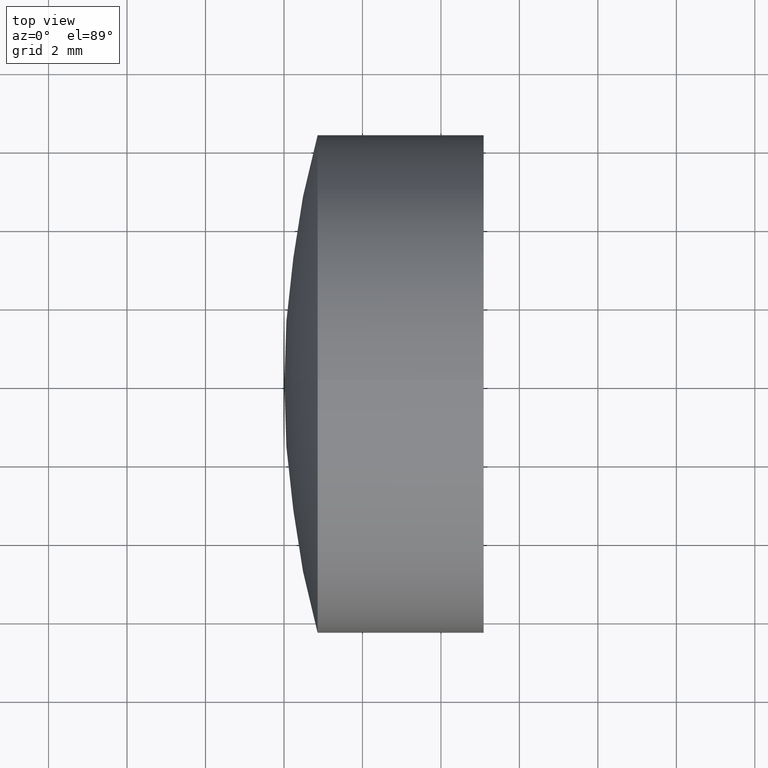
[diagram: clean part render]
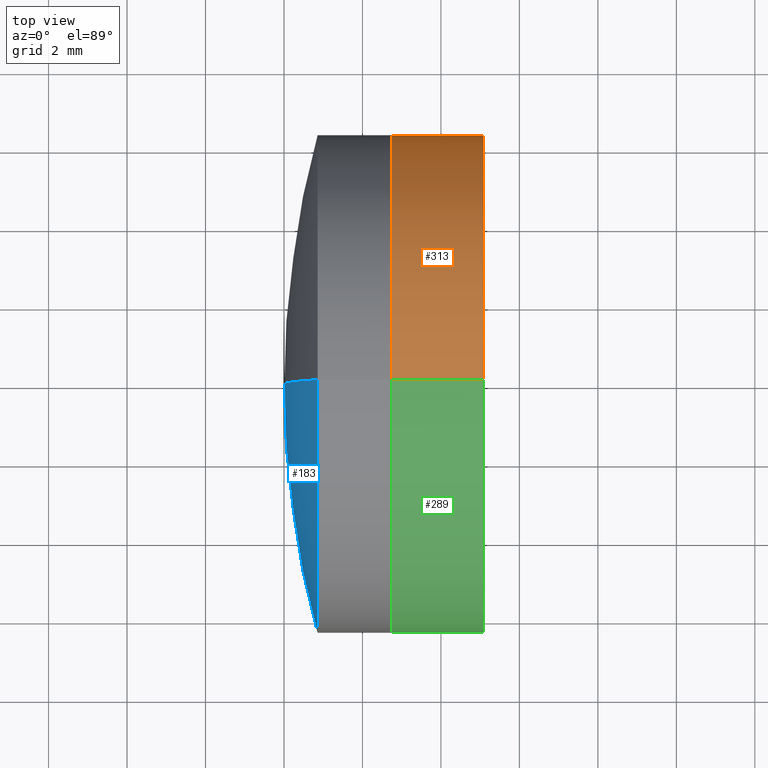
[diagram: same view with three faces highlighted in distinct colors, each labeled with its STEP entity id]
A machine part, top view with three faces highlighted in distinct colors.
Their STEP definitions:

[orange] entity #313 — the highlighted cylindrical surface (partial cylindrical patch) has radius 6.35 mm, axis along (-1, -0, -0).
#5 = VERTEX_POINT ( 'NONE', #310 ) ;
#23 = CARTESIAN_POINT ( 'NONE',  ( 286.7458055381524700, 0.0000000000000000000, 6.349999999999917900 ) ) ;
#32 = DIRECTION ( 'NONE',  ( 0.0000000000000000000, 0.0000000000000000000, 1.000000000000000000 ) ) ;
#39 = CARTESIAN_POINT ( 'NONE',  ( 286.7458055381524700, 0.0000000000000000000, 0.0000000000000000000 ) ) ;
#50 = LINE ( 'NONE', #222, #242 ) ;
#55 = LINE ( 'NONE', #298, #247 ) ;
#62 = CARTESIAN_POINT ( 'NONE',  ( -0.5519199926577972300, 0.0000000000000000000, 0.0000000000000000000 ) ) ;
#69 = VERTEX_POINT ( 'NONE', #23 ) ;
#82 = ORIENTED_EDGE ( 'NONE', *, *, #127, .T. ) ;
#83 = AXIS2_PLACEMENT_3D ( 'NONE', #189, #339, #165 ) ;
#93 = DIRECTION ( 'NONE',  ( -1.000000000000000000, -0.0000000000000000000, -0.0000000000000000000 ) ) ;
#112 = EDGE_CURVE ( 'NONE', #171, #69, #55, .T. ) ;
#119 = CARTESIAN_POINT ( 'NONE',  ( 289.0896146618997600, 0.0000000000000000000, 6.349999999999906400 ) ) ;
#120 = VERTEX_POINT ( 'NONE', #291 ) ;
#121 = DIRECTION ( 'NONE',  ( -1.000000000000000000, -0.0000000000000000000, -0.0000000000000000000 ) ) ;
#126 = ORIENTED_EDGE ( 'NONE', *, *, #112, .F. ) ;
#127 = EDGE_CURVE ( 'NONE', #5, #120, #50, .T. ) ;
#138 = ORIENTED_EDGE ( 'NONE', *, *, #306, .T. ) ;
#150 = DIRECTION ( 'NONE',  ( -1.000000000000000000, -0.0000000000000000000, -0.0000000000000000000 ) ) ;
#165 = DIRECTION ( 'NONE',  ( 0.0000000000000000000, 0.0000000000000000000, 1.000000000000000000 ) ) ;
#166 = FACE_OUTER_BOUND ( 'NONE', #217, .T. ) ;
#168 = AXIS2_PLACEMENT_3D ( 'NONE', #39, #93, #180 ) ;
#171 = VERTEX_POINT ( 'NONE', #119 ) ;
#177 = AXIS2_PLACEMENT_3D ( 'NONE', #62, #261, #32 ) ;
#180 = DIRECTION ( 'NONE',  ( 0.0000000000000000000, 0.0000000000000000000, 1.000000000000000000 ) ) ;
#189 = CARTESIAN_POINT ( 'NONE',  ( 289.0896146618997600, 0.0000000000000000000, 0.0000000000000000000 ) ) ;
#217 = EDGE_LOOP ( 'NONE', ( #138, #82, #224, #126 ) ) ;
#222 = CARTESIAN_POINT ( 'NONE',  ( -0.5519199926577972300, 7.776507174585593600E-016, -6.349999999999918800 ) ) ;
#223 = CIRCLE ( 'NONE', #83, 6.349999999999906400 ) ;
#224 = ORIENTED_EDGE ( 'NONE', *, *, #228, .F. ) ;
#226 = CIRCLE ( 'NONE', #168, 6.349999999999932100 ) ;
#228 = EDGE_CURVE ( 'NONE', #69, #120, #226, .T. ) ;
#242 = VECTOR ( 'NONE', #121, 1000.000000000000000 ) ;
#247 = VECTOR ( 'NONE', #150, 1000.000000000000000 ) ;
#261 = DIRECTION ( 'NONE',  ( -1.000000000000000000, -0.0000000000000000000, -0.0000000000000000000 ) ) ;
#275 = CYLINDRICAL_SURFACE ( 'NONE', #177, 6.349999999999918800 ) ;
#291 = CARTESIAN_POINT ( 'NONE',  ( 286.7458055381524700, 7.776507174585592600E-016, -6.349999999999921500 ) ) ;
#298 = CARTESIAN_POINT ( 'NONE',  ( -0.5519199926577972300, 0.0000000000000000000, 6.349999999999918800 ) ) ;
#306 = EDGE_CURVE ( 'NONE', #171, #5, #223, .T. ) ;
#310 = CARTESIAN_POINT ( 'NONE',  ( 289.0896146618997600, 7.776507174585584700E-016, -6.349999999999906400 ) ) ;
#313 = ADVANCED_FACE ( 'NONE', ( #166 ), #275, .T. ) ;
#339 = DIRECTION ( 'NONE',  ( -1.000000000000000000, -0.0000000000000000000, -0.0000000000000000000 ) ) ;

[blue] entity #183 — the highlighted spherical surface has radius 24.2 mm.
#6 = DIRECTION ( 'NONE',  ( 0.0000000000000000000, 1.000000000000000000, 0.0000000000000000000 ) ) ;
#11 = AXIS2_PLACEMENT_3D ( 'NONE', #208, #22, #184 ) ;
#22 = DIRECTION ( 'NONE',  ( -1.000000000000000000, -0.0000000000000000000, -0.0000000000000000000 ) ) ;
#44 = DIRECTION ( 'NONE',  ( 0.0000000000000000000, 0.0000000000000000000, -1.000000000000000000 ) ) ;
#68 = CARTESIAN_POINT ( 'NONE',  ( 308.2089566504702100, 0.0000000000000000000, -3.485532528785909500E-015 ) ) ;
#70 = CARTESIAN_POINT ( 'NONE',  ( 308.2089566504702100, 0.0000000000000000000, -3.485532528785909500E-015 ) ) ;
#72 = AXIS2_PLACEMENT_3D ( 'NONE', #91, #319, #174 ) ;
#73 = EDGE_CURVE ( 'NONE', #122, #99, #131, .T. ) ;
#91 = CARTESIAN_POINT ( 'NONE',  ( 308.2089566504702100, 0.0000000000000000000, -3.485532528785909500E-015 ) ) ;
#99 = VERTEX_POINT ( 'NONE', #105 ) ;
#105 = CARTESIAN_POINT ( 'NONE',  ( 284.8569224778333400, 0.0000000000000000000, 6.350000000000001400 ) ) ;
#122 = VERTEX_POINT ( 'NONE', #271 ) ;
#124 = EDGE_CURVE ( 'NONE', #99, #201, #305, .T. ) ;
#131 = CIRCLE ( 'NONE', #11, 6.349999999999996100 ) ;
#141 = EDGE_LOOP ( 'NONE', ( #198, #330, #284 ) ) ;
#152 = AXIS2_PLACEMENT_3D ( 'NONE', #68, #6, #195 ) ;
#174 = DIRECTION ( 'NONE',  ( 0.0000000000000000000, -1.224646799147353200E-016, 1.000000000000000000 ) ) ;
#183 = ADVANCED_FACE ( 'NONE', ( #301 ), #185, .T. ) ;
#184 = DIRECTION ( 'NONE',  ( 0.0000000000000000000, 0.0000000000000000000, 1.000000000000000000 ) ) ;
#185 = SPHERICAL_SURFACE ( 'NONE', #152, 24.20000000000000600 ) ;
#195 = DIRECTION ( 'NONE',  ( 0.0000000000000000000, 0.0000000000000000000, 1.000000000000000000 ) ) ;
#197 = DIRECTION ( 'NONE',  ( 0.0000000000000000000, -1.000000000000000000, 0.0000000000000000000 ) ) ;
#198 = ORIENTED_EDGE ( 'NONE', *, *, #200, .F. ) ;
#200 = EDGE_CURVE ( 'NONE', #122, #201, #235, .T. ) ;
#201 = VERTEX_POINT ( 'NONE', #296 ) ;
#208 = CARTESIAN_POINT ( 'NONE',  ( 284.8569224778333400, 0.0000000000000000000, 0.0000000000000000000 ) ) ;
#209 = AXIS2_PLACEMENT_3D ( 'NONE', #70, #197, #44 ) ;
#235 = CIRCLE ( 'NONE', #72, 24.20000000000000600 ) ;
#271 = CARTESIAN_POINT ( 'NONE',  ( 284.8569224778333400, 7.776507174585695100E-016, -6.350000000000005000 ) ) ;
#284 = ORIENTED_EDGE ( 'NONE', *, *, #124, .T. ) ;
#296 = CARTESIAN_POINT ( 'NONE',  ( 284.0089566504702200, 0.0000000000000000000, -2.003709901817612000E-015 ) ) ;
#301 = FACE_OUTER_BOUND ( 'NONE', #141, .T. ) ;
#305 = CIRCLE ( 'NONE', #209, 24.20000000000000600 ) ;
#319 = DIRECTION ( 'NONE',  ( -0.0000000000000000000, 1.000000000000000000, 1.224646799147353200E-016 ) ) ;
#330 = ORIENTED_EDGE ( 'NONE', *, *, #73, .T. ) ;

[green] entity #289 — the highlighted cylindrical surface (partial cylindrical patch) has radius 6.35 mm, axis along (-1, -0, -0).
#5 = VERTEX_POINT ( 'NONE', #310 ) ;
#15 = EDGE_CURVE ( 'NONE', #120, #69, #19, .T. ) ;
#19 = CIRCLE ( 'NONE', #116, 6.349999999999932100 ) ;
#23 = CARTESIAN_POINT ( 'NONE',  ( 286.7458055381524700, 0.0000000000000000000, 6.349999999999917900 ) ) ;
#31 = DIRECTION ( 'NONE',  ( -1.000000000000000000, -0.0000000000000000000, -0.0000000000000000000 ) ) ;
#36 = DIRECTION ( 'NONE',  ( -1.000000000000000000, -0.0000000000000000000, -0.0000000000000000000 ) ) ;
#45 = EDGE_CURVE ( 'NONE', #5, #171, #333, .T. ) ;
#50 = LINE ( 'NONE', #222, #242 ) ;
#55 = LINE ( 'NONE', #298, #247 ) ;
#56 = DIRECTION ( 'NONE',  ( 0.0000000000000000000, 0.0000000000000000000, 1.000000000000000000 ) ) ;
#65 = DIRECTION ( 'NONE',  ( 0.0000000000000000000, 0.0000000000000000000, 1.000000000000000000 ) ) ;
#69 = VERTEX_POINT ( 'NONE', #23 ) ;
#74 = ORIENTED_EDGE ( 'NONE', *, *, #127, .F. ) ;
#81 = CARTESIAN_POINT ( 'NONE',  ( 289.0896146618997600, 0.0000000000000000000, 0.0000000000000000000 ) ) ;
#92 = AXIS2_PLACEMENT_3D ( 'NONE', #81, #234, #56 ) ;
#97 = CYLINDRICAL_SURFACE ( 'NONE', #118, 6.349999999999918800 ) ;
#112 = EDGE_CURVE ( 'NONE', #171, #69, #55, .T. ) ;
#114 = ORIENTED_EDGE ( 'NONE', *, *, #112, .T. ) ;
#116 = AXIS2_PLACEMENT_3D ( 'NONE', #214, #31, #188 ) ;
#118 = AXIS2_PLACEMENT_3D ( 'NONE', #347, #36, #65 ) ;
#119 = CARTESIAN_POINT ( 'NONE',  ( 289.0896146618997600, 0.0000000000000000000, 6.349999999999906400 ) ) ;
#120 = VERTEX_POINT ( 'NONE', #291 ) ;
#121 = DIRECTION ( 'NONE',  ( -1.000000000000000000, -0.0000000000000000000, -0.0000000000000000000 ) ) ;
#127 = EDGE_CURVE ( 'NONE', #5, #120, #50, .T. ) ;
#129 = FACE_OUTER_BOUND ( 'NONE', #300, .T. ) ;
#150 = DIRECTION ( 'NONE',  ( -1.000000000000000000, -0.0000000000000000000, -0.0000000000000000000 ) ) ;
#153 = ORIENTED_EDGE ( 'NONE', *, *, #15, .F. ) ;
#171 = VERTEX_POINT ( 'NONE', #119 ) ;
#188 = DIRECTION ( 'NONE',  ( 0.0000000000000000000, 0.0000000000000000000, 1.000000000000000000 ) ) ;
#214 = CARTESIAN_POINT ( 'NONE',  ( 286.7458055381524700, 0.0000000000000000000, 0.0000000000000000000 ) ) ;
#222 = CARTESIAN_POINT ( 'NONE',  ( -0.5519199926577972300, 7.776507174585593600E-016, -6.349999999999918800 ) ) ;
#234 = DIRECTION ( 'NONE',  ( -1.000000000000000000, -0.0000000000000000000, -0.0000000000000000000 ) ) ;
#242 = VECTOR ( 'NONE', #121, 1000.000000000000000 ) ;
#247 = VECTOR ( 'NONE', #150, 1000.000000000000000 ) ;
#289 = ADVANCED_FACE ( 'NONE', ( #129 ), #97, .T. ) ;
#291 = CARTESIAN_POINT ( 'NONE',  ( 286.7458055381524700, 7.776507174585592600E-016, -6.349999999999921500 ) ) ;
#298 = CARTESIAN_POINT ( 'NONE',  ( -0.5519199926577972300, 0.0000000000000000000, 6.349999999999918800 ) ) ;
#300 = EDGE_LOOP ( 'NONE', ( #74, #331, #114, #153 ) ) ;
#310 = CARTESIAN_POINT ( 'NONE',  ( 289.0896146618997600, 7.776507174585584700E-016, -6.349999999999906400 ) ) ;
#331 = ORIENTED_EDGE ( 'NONE', *, *, #45, .T. ) ;
#333 = CIRCLE ( 'NONE', #92, 6.349999999999906400 ) ;
#347 = CARTESIAN_POINT ( 'NONE',  ( -0.5519199926577972300, 0.0000000000000000000, 0.0000000000000000000 ) ) ;